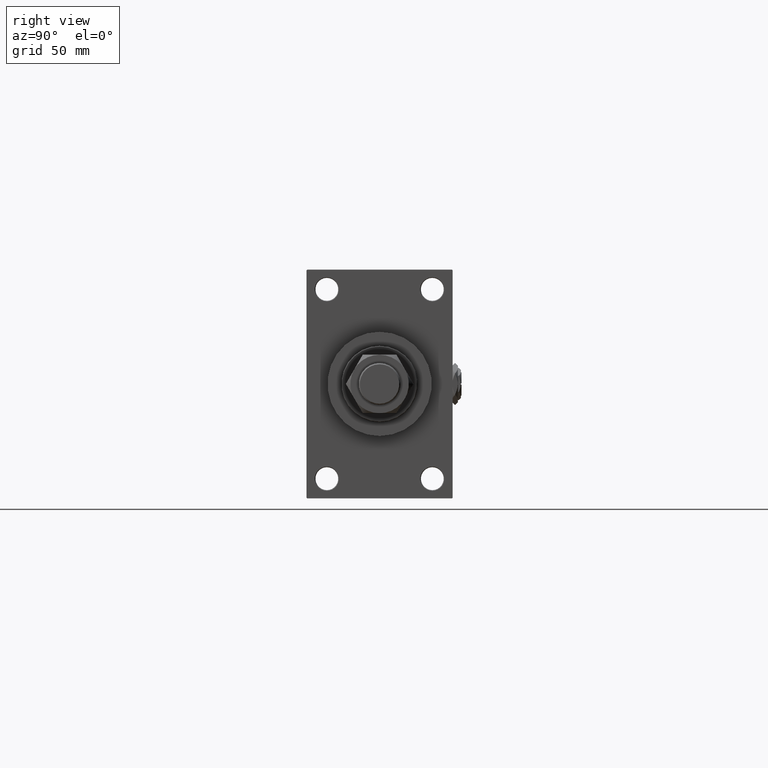
[diagram: clean part render]
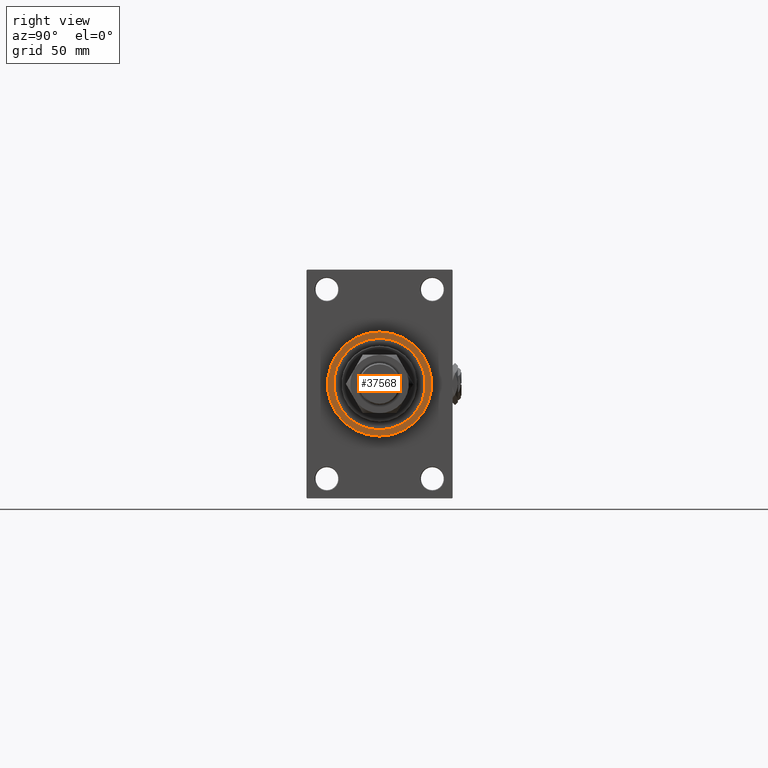
[diagram: same view with one face highlighted and labeled with its STEP entity id]
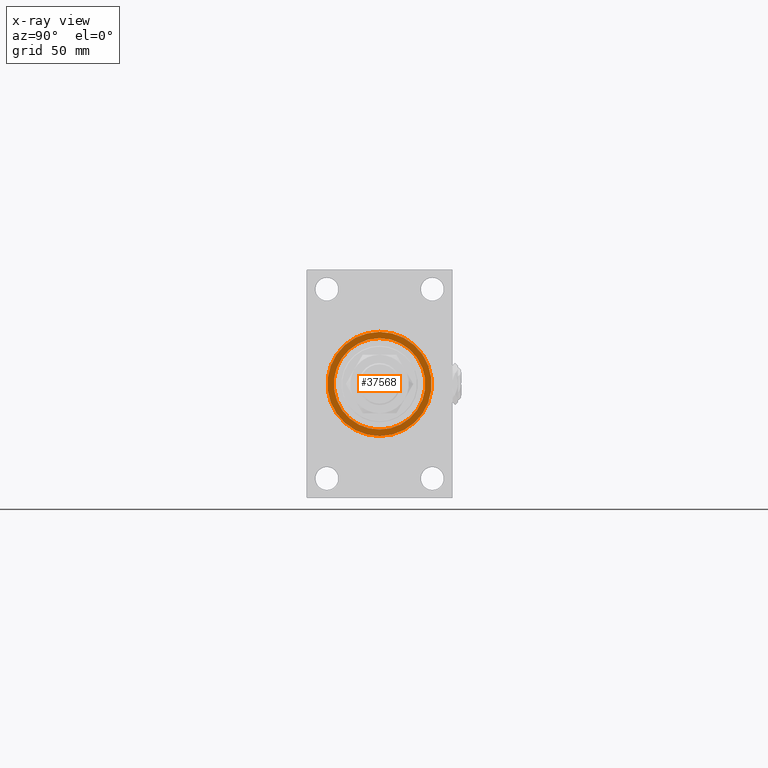
[diagram: x-ray of the same camera — body ghosted, the highlighted face saturated]
A machine part, right view. The second image highlights one B-rep face of the part: STEP entity #37568.
The next image is the same camera in x-ray: the body ghosted, the highlighted face saturated — about 0% of this face is hidden behind the body in this view.
In plain terms, the highlighted planar face has unit normal (1, 0, 0).
Its self-contained STEP definition (entity closure, byte-faithful):
#266 = EDGE_CURVE ( 'NONE', #48488, #26799, #23805, .T. ) ;
#2011 = DIRECTION ( 'NONE',  ( 1.000000000000000000, 0.000000000000000000, 0.000000000000000000 ) ) ;
#2528 = DIRECTION ( 'NONE',  ( 0.000000000000000000, 0.000000000000000000, -1.000000000000000000 ) ) ;
#2530 = CARTESIAN_POINT ( 'NONE',  ( 409.0000000000000000, 5.021051876504148963E-15, -41.00000000000000000 ) ) ;
#3778 = EDGE_CURVE ( 'NONE', #26799, #48488, #47086, .T. ) ;
#4156 = DIRECTION ( 'NONE',  ( 1.000000000000000000, 0.000000000000000000, 0.000000000000000000 ) ) ;
#4673 = DIRECTION ( 'NONE',  ( 0.000000000000000000, 0.000000000000000000, -1.000000000000000000 ) ) ;
#6359 = DIRECTION ( 'NONE',  ( 1.000000000000000000, 0.000000000000000000, 0.000000000000000000 ) ) ;
#6886 = CARTESIAN_POINT ( 'NONE',  ( 409.0000000000000000, 0.000000000000000000, -36.00000000000000000 ) ) ;
#7084 = VERTEX_POINT ( 'NONE', #44181 ) ;
#11245 = CARTESIAN_POINT ( 'NONE',  ( 409.0000000000000000, 0.000000000000000000, 0.000000000000000000 ) ) ;
#13153 = DIRECTION ( 'NONE',  ( 1.000000000000000000, 0.000000000000000000, 0.000000000000000000 ) ) ;
#13598 = ORIENTED_EDGE ( 'NONE', *, *, #3778, .F. ) ;
#14201 = FACE_OUTER_BOUND ( 'NONE', #14924, .T. ) ;
#14924 = EDGE_LOOP ( 'NONE', ( #31225, #20861 ) ) ;
#16825 = EDGE_CURVE ( 'NONE', #39342, #7084, #18611, .T. ) ;
#17746 = AXIS2_PLACEMENT_3D ( 'NONE', #25958, #2011, #2528 ) ;
#18263 = AXIS2_PLACEMENT_3D ( 'NONE', #29804, #13153, #33713 ) ;
#18551 = DIRECTION ( 'NONE',  ( 1.000000000000000000, 0.000000000000000000, 0.000000000000000000 ) ) ;
#18611 = CIRCLE ( 'NONE', #17746, 41.00000000000000000 ) ;
#20861 = ORIENTED_EDGE ( 'NONE', *, *, #16825, .T. ) ;
#21131 = EDGE_CURVE ( 'NONE', #7084, #39342, #45191, .T. ) ;
#21303 = AXIS2_PLACEMENT_3D ( 'NONE', #37599, #6359, #45408 ) ;
#23805 = CIRCLE ( 'NONE', #35412, 36.00000000000000000 ) ;
#24216 = CARTESIAN_POINT ( 'NONE',  ( 409.0000000000000000, 0.000000000000000000, 0.000000000000000000 ) ) ;
#25958 = CARTESIAN_POINT ( 'NONE',  ( 409.0000000000000000, 0.000000000000000000, 0.000000000000000000 ) ) ;
#26799 = VERTEX_POINT ( 'NONE', #27515 ) ;
#27515 = CARTESIAN_POINT ( 'NONE',  ( 409.0000000000000000, 4.408728476930470856E-15, 36.00000000000000000 ) ) ;
#29804 = CARTESIAN_POINT ( 'NONE',  ( 409.0000000000000000, 0.000000000000000000, 0.000000000000000000 ) ) ;
#30060 = PLANE ( 'NONE',  #18263 ) ;
#31225 = ORIENTED_EDGE ( 'NONE', *, *, #21131, .T. ) ;
#32935 = FACE_BOUND ( 'NONE', #50369, .T. ) ;
#33713 = DIRECTION ( 'NONE',  ( 0.000000000000000000, 0.000000000000000000, -1.000000000000000000 ) ) ;
#34427 = DIRECTION ( 'NONE',  ( 0.000000000000000000, 0.000000000000000000, -1.000000000000000000 ) ) ;
#35412 = AXIS2_PLACEMENT_3D ( 'NONE', #24216, #4156, #4673 ) ;
#37568 = ADVANCED_FACE ( 'NONE', ( #32935, #14201 ), #30060, .T. ) ;
#37599 = CARTESIAN_POINT ( 'NONE',  ( 409.0000000000000000, 0.000000000000000000, 0.000000000000000000 ) ) ;
#39342 = VERTEX_POINT ( 'NONE', #2530 ) ;
#39398 = AXIS2_PLACEMENT_3D ( 'NONE', #11245, #18551, #34427 ) ;
#44129 = ORIENTED_EDGE ( 'NONE', *, *, #266, .F. ) ;
#44181 = CARTESIAN_POINT ( 'NONE',  ( 409.0000000000000000, 0.000000000000000000, 41.00000000000000000 ) ) ;
#45191 = CIRCLE ( 'NONE', #39398, 41.00000000000000000 ) ;
#45408 = DIRECTION ( 'NONE',  ( 0.000000000000000000, 0.000000000000000000, -1.000000000000000000 ) ) ;
#47086 = CIRCLE ( 'NONE', #21303, 36.00000000000000000 ) ;
#48488 = VERTEX_POINT ( 'NONE', #6886 ) ;
#50369 = EDGE_LOOP ( 'NONE', ( #44129, #13598 ) ) ;